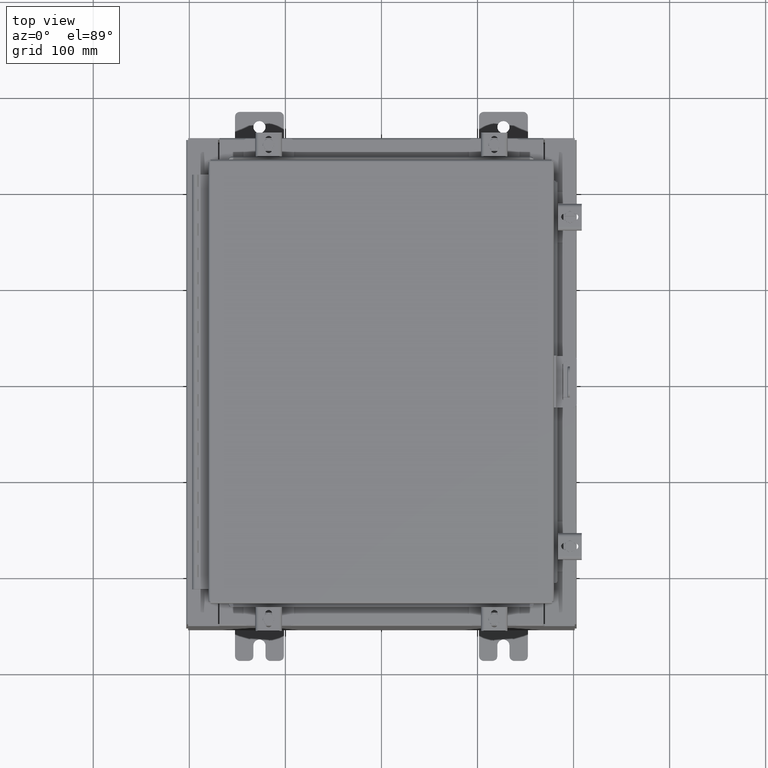
[diagram: clean part render]
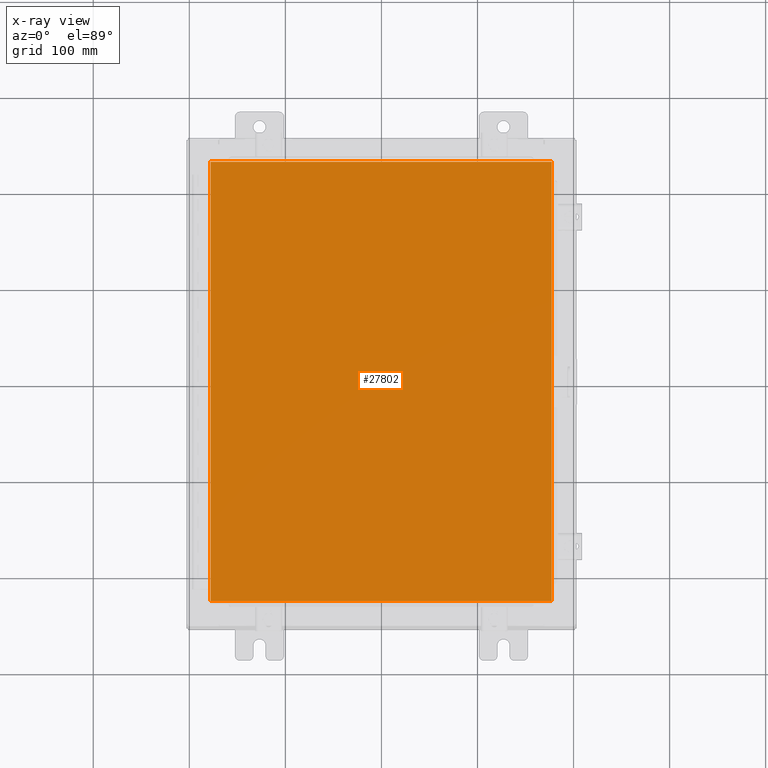
[diagram: x-ray — body ghosted, one internal face saturated and labeled with its STEP entity id]
A machine part, top view, then the same camera in x-ray: the body is ghosted and one INTERNAL B-rep face — a face not visible from any outside direction — is saturated and labeled: STEP entity #27802.
In plain terms, the highlighted planar face has unit normal (0, 0, -1).
Its self-contained STEP definition (entity closure, byte-faithful):
#2516 = DIRECTION ( 'NONE',  ( -1.000000000000000000, 0.0000000000000000000, -0.0000000000000000000 ) ) ;
#2677 = DIRECTION ( 'NONE',  ( 0.0000000000000000000, -1.000000000000000000, 0.0000000000000000000 ) ) ;
#2761 = LINE ( 'NONE', #4282, #21587 ) ;
#2806 = LINE ( 'NONE', #10533, #8138 ) ;
#2877 = VERTEX_POINT ( 'NONE', #16719 ) ;
#4177 = LINE ( 'NONE', #23169, #21551 ) ;
#4282 = CARTESIAN_POINT ( 'NONE',  ( 6.990300000000002200, 9.006300000000001300, -0.07470000000000073800 ) ) ;
#4338 = VECTOR ( 'NONE', #7957, 39.37007874015748100 ) ;
#6076 = FACE_OUTER_BOUND ( 'NONE', #21601, .T. ) ;
#7761 = CARTESIAN_POINT ( 'NONE',  ( 6.990300000000002200, -9.006299999999997800, -0.07470000000000019700 ) ) ;
#7796 = ORIENTED_EDGE ( 'NONE', *, *, #17513, .F. ) ;
#7957 = DIRECTION ( 'NONE',  ( 0.0000000000000000000, 1.000000000000000000, 0.0000000000000000000 ) ) ;
#8138 = VECTOR ( 'NONE', #24159, 39.37007874015748100 ) ;
#9383 = EDGE_CURVE ( 'NONE', #9450, #26053, #2806, .T. ) ;
#9450 = VERTEX_POINT ( 'NONE', #22138 ) ;
#10533 = CARTESIAN_POINT ( 'NONE',  ( -6.990299999999997700, -9.006299999999997800, -0.07470000000000019700 ) ) ;
#11443 = VERTEX_POINT ( 'NONE', #21730 ) ;
#16125 = DIRECTION ( 'NONE',  ( 0.0000000000000000000, 0.0000000000000000000, -1.000000000000000000 ) ) ;
#16405 = LINE ( 'NONE', #7761, #4338 ) ;
#16719 = CARTESIAN_POINT ( 'NONE',  ( 6.990300000000001300, 9.006300000000001300, -0.07470000000000000300 ) ) ;
#17513 = EDGE_CURVE ( 'NONE', #11443, #9450, #4177, .T. ) ;
#18850 = AXIS2_PLACEMENT_3D ( 'NONE', #22794, #16125, #2516 ) ;
#19377 = ORIENTED_EDGE ( 'NONE', *, *, #23189, .F. ) ;
#20968 = ORIENTED_EDGE ( 'NONE', *, *, #21094, .F. ) ;
#21094 = EDGE_CURVE ( 'NONE', #26053, #2877, #16405, .T. ) ;
#21551 = VECTOR ( 'NONE', #2677, 39.37007874015748100 ) ;
#21587 = VECTOR ( 'NONE', #26860, 39.37007874015748100 ) ;
#21601 = EDGE_LOOP ( 'NONE', ( #20968, #29370, #7796, #19377 ) ) ;
#21730 = CARTESIAN_POINT ( 'NONE',  ( -6.990299999999997700, 9.006299999999999500, -0.07470000000000000300 ) ) ;
#22138 = CARTESIAN_POINT ( 'NONE',  ( -6.990299999999996800, -9.006299999999997800, -0.07470000000000000300 ) ) ;
#22794 = CARTESIAN_POINT ( 'NONE',  ( 0.0000000000000000000, 0.0000000000000000000, -0.07470000000000000300 ) ) ;
#23169 = CARTESIAN_POINT ( 'NONE',  ( -6.990299999999997700, 9.006300000000001300, -0.07470000000000019700 ) ) ;
#23189 = EDGE_CURVE ( 'NONE', #2877, #11443, #2761, .T. ) ;
#23902 = CARTESIAN_POINT ( 'NONE',  ( 6.990300000000002200, -9.006299999999997800, -0.07470000000000000300 ) ) ;
#24159 = DIRECTION ( 'NONE',  ( 1.000000000000000000, -0.0000000000000000000, -0.0000000000000000000 ) ) ;
#26053 = VERTEX_POINT ( 'NONE', #23902 ) ;
#26860 = DIRECTION ( 'NONE',  ( -1.000000000000000000, -0.0000000000000000000, -0.0000000000000000000 ) ) ;
#27436 = PLANE ( 'NONE',  #18850 ) ;
#27802 = ADVANCED_FACE ( 'NONE', ( #6076 ), #27436, .T. ) ;
#29370 = ORIENTED_EDGE ( 'NONE', *, *, #9383, .F. ) ;